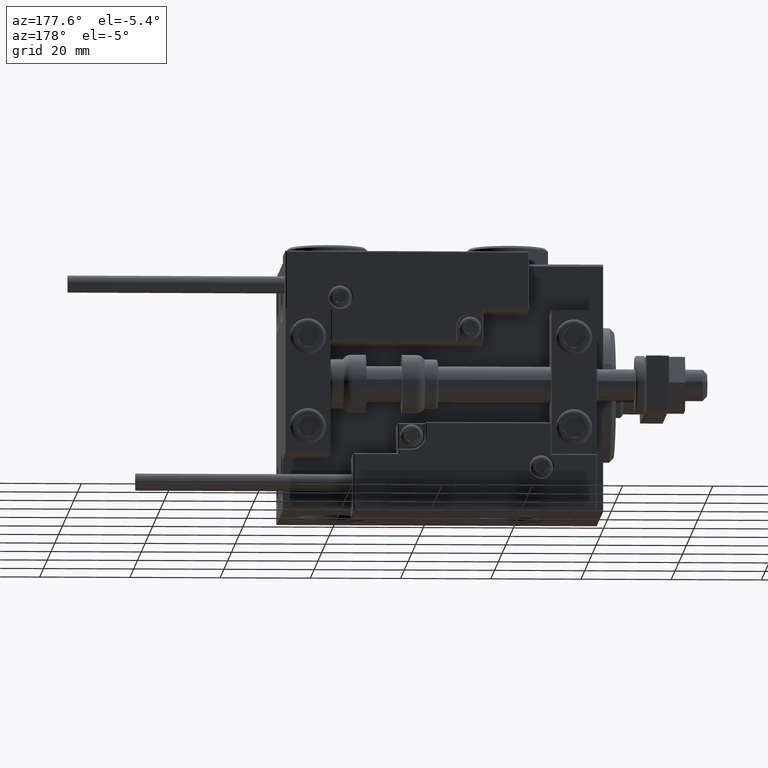
[diagram: clean part render]
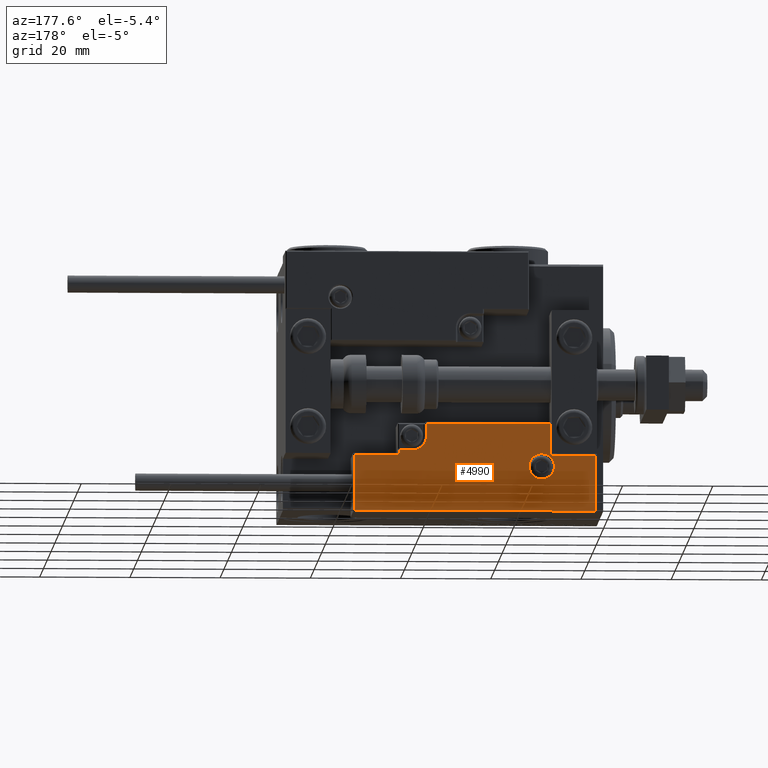
[diagram: same view with one face highlighted and labeled with its STEP entity id]
A machine part, auxiliary view. The second image highlights one B-rep face of the part: STEP entity #4990.
In plain terms, the highlighted planar face has unit normal (-0, 1, -0).
Its self-contained STEP definition (entity closure, byte-faithful):
#24 = LINE ( 'NONE', #39387, #17751 ) ;
#43 = VERTEX_POINT ( 'NONE', #46059 ) ;
#112 = CARTESIAN_POINT ( 'NONE',  ( 0.000000000000000000, 0.000000000000000000, 14.00000000000000000 ) ) ;
#916 = VECTOR ( 'NONE', #11790, 1000.000000000000000 ) ;
#1487 = EDGE_CURVE ( 'NONE', #8865, #2902, #44139, .T. ) ;
#2498 = CARTESIAN_POINT ( 'NONE',  ( -16.69999999999999218, 7.300000000000003375, 14.00000000000000000 ) ) ;
#2902 = VERTEX_POINT ( 'NONE', #35184 ) ;
#3754 = CARTESIAN_POINT ( 'NONE',  ( 10.69999999999999929, 3.000000000000003109, 14.00000000000000000 ) ) ;
#3976 = ORIENTED_EDGE ( 'NONE', *, *, #1487, .T. ) ;
#4990 = ADVANCED_FACE ( 'NONE', ( #31660, #44147 ), #47576, .T. ) ;
#5019 = ORIENTED_EDGE ( 'NONE', *, *, #34807, .T. ) ;
#5955 = VERTEX_POINT ( 'NONE', #2498 ) ;
#6828 = VERTEX_POINT ( 'NONE', #46099 ) ;
#7706 = LINE ( 'NONE', #15283, #19313 ) ;
#8865 = VERTEX_POINT ( 'NONE', #22667 ) ;
#10087 = ORIENTED_EDGE ( 'NONE', *, *, #10837, .T. ) ;
#10363 = EDGE_LOOP ( 'NONE', ( #3976, #16828 ) ) ;
#10467 = ORIENTED_EDGE ( 'NONE', *, *, #22416, .T. ) ;
#10821 = CARTESIAN_POINT ( 'NONE',  ( 13.99999999999999822, 6.300000000000001599, 14.00000000000000000 ) ) ;
#10837 = EDGE_CURVE ( 'NONE', #12705, #6828, #29470, .T. ) ;
#11027 = LINE ( 'NONE', #42815, #916 ) ;
#11790 = DIRECTION ( 'NONE',  ( -1.000000000000000000, 6.424901762877063495E-17, -0.000000000000000000 ) ) ;
#12258 = ORIENTED_EDGE ( 'NONE', *, *, #31239, .T. ) ;
#12592 = ORIENTED_EDGE ( 'NONE', *, *, #27986, .T. ) ;
#12705 = VERTEX_POINT ( 'NONE', #18082 ) ;
#13340 = AXIS2_PLACEMENT_3D ( 'NONE', #112, #31923, #47319 ) ;
#13341 = VERTEX_POINT ( 'NONE', #10821 ) ;
#14331 = ORIENTED_EDGE ( 'NONE', *, *, #27168, .T. ) ;
#14783 = ORIENTED_EDGE ( 'NONE', *, *, #22266, .T. ) ;
#15283 = CARTESIAN_POINT ( 'NONE',  ( 16.69999999999999929, 7.000000000000009770, 14.00000000000000000 ) ) ;
#15429 = CARTESIAN_POINT ( 'NONE',  ( 13.99999999999999822, 3.000000000000002665, 14.00000000000000000 ) ) ;
#16828 = ORIENTED_EDGE ( 'NONE', *, *, #48412, .T. ) ;
#16892 = VECTOR ( 'NONE', #34422, 1000.000000000000000 ) ;
#16982 = CARTESIAN_POINT ( 'NONE',  ( 27.00000000000006395, 7.300000000000007816, 14.00000000000000000 ) ) ;
#17046 = VECTOR ( 'NONE', #33677, 1000.000000000000000 ) ;
#17736 = CARTESIAN_POINT ( 'NONE',  ( 26.70000000000006324, 20.00000000000001776, 14.00000000000000000 ) ) ;
#17751 = VECTOR ( 'NONE', #27914, 1000.000000000000000 ) ;
#17803 = CARTESIAN_POINT ( 'NONE',  ( -26.69999999999994600, 7.000000000000005329, 14.00000000000000000 ) ) ;
#17910 = ORIENTED_EDGE ( 'NONE', *, *, #20043, .T. ) ;
#17956 = VERTEX_POINT ( 'NONE', #34830 ) ;
#18027 = LINE ( 'NONE', #18807, #16892 ) ;
#18082 = CARTESIAN_POINT ( 'NONE',  ( 16.69999999999999929, 7.300000000000009592, 14.00000000000000000 ) ) ;
#18496 = DIRECTION ( 'NONE',  ( 0.000000000000000000, 1.000000000000000000, -0.000000000000000000 ) ) ;
#18807 = CARTESIAN_POINT ( 'NONE',  ( -16.99999999999999289, 7.300000000000003375, 14.00000000000000000 ) ) ;
#19313 = VECTOR ( 'NONE', #31169, 1000.000000000000000 ) ;
#20043 = EDGE_CURVE ( 'NONE', #24370, #43, #43361, .T. ) ;
#20195 = LINE ( 'NONE', #28014, #46820 ) ;
#21565 = CARTESIAN_POINT ( 'NONE',  ( -26.69999999999993534, 19.70000000000002061, 14.00000000000000000 ) ) ;
#21890 = VECTOR ( 'NONE', #33368, 1000.000000000000000 ) ;
#21972 = DIRECTION ( 'NONE',  ( 0.000000000000000000, -0.000000000000000000, -1.000000000000000000 ) ) ;
#22255 = AXIS2_PLACEMENT_3D ( 'NONE', #15429, #31313, #47226 ) ;
#22266 = EDGE_CURVE ( 'NONE', #17956, #12705, #7706, .T. ) ;
#22416 = EDGE_CURVE ( 'NONE', #13341, #17956, #20195, .T. ) ;
#22667 = CARTESIAN_POINT ( 'NONE',  ( -11.99999999999994849, 9.800000000000004263, 14.00000000000000000 ) ) ;
#24127 = CIRCLE ( 'NONE', #35807, 2.800000000000000266 ) ;
#24210 = VECTOR ( 'NONE', #31898, 1000.000000000000000 ) ;
#24370 = VERTEX_POINT ( 'NONE', #50948 ) ;
#26280 = VECTOR ( 'NONE', #35021, 1000.000000000000000 ) ;
#26827 = CARTESIAN_POINT ( 'NONE',  ( -16.69999999999999218, 0.3000000000000032085, 14.00000000000000000 ) ) ;
#27053 = VERTEX_POINT ( 'NONE', #31428 ) ;
#27168 = EDGE_CURVE ( 'NONE', #28280, #5955, #18027, .T. ) ;
#27914 = DIRECTION ( 'NONE',  ( 0.000000000000000000, -1.000000000000000000, 0.000000000000000000 ) ) ;
#27986 = EDGE_CURVE ( 'NONE', #5955, #47887, #24, .T. ) ;
#28014 = CARTESIAN_POINT ( 'NONE',  ( 17.00000000000000000, 6.300000000000003375, 14.00000000000000000 ) ) ;
#28280 = VERTEX_POINT ( 'NONE', #42988 ) ;
#28555 = DIRECTION ( 'NONE',  ( 0.000000000000000000, -0.000000000000000000, -1.000000000000000000 ) ) ;
#29470 = LINE ( 'NONE', #16982, #21890 ) ;
#29744 = EDGE_LOOP ( 'NONE', ( #12592, #5019, #17910, #43532, #10467, #14783, #10087, #32507, #39917, #12258, #14331 ) ) ;
#30487 = LINE ( 'NONE', #17736, #51183 ) ;
#30867 = LINE ( 'NONE', #38688, #26280 ) ;
#31169 = DIRECTION ( 'NONE',  ( 9.912705577010318647E-16, 1.000000000000000000, 0.000000000000000000 ) ) ;
#31239 = EDGE_CURVE ( 'NONE', #31798, #28280, #33164, .T. ) ;
#31313 = DIRECTION ( 'NONE',  ( 0.000000000000000000, -0.000000000000000000, -1.000000000000000000 ) ) ;
#31428 = CARTESIAN_POINT ( 'NONE',  ( 26.70000000000006324, 19.70000000000001705, 14.00000000000000000 ) ) ;
#31660 = FACE_BOUND ( 'NONE', #10363, .T. ) ;
#31664 = EDGE_CURVE ( 'NONE', #6828, #27053, #30487, .T. ) ;
#31798 = VERTEX_POINT ( 'NONE', #21565 ) ;
#31898 = DIRECTION ( 'NONE',  ( -0.000000000000000000, 1.000000000000000000, -0.000000000000000000 ) ) ;
#31923 = DIRECTION ( 'NONE',  ( -0.000000000000000000, 0.000000000000000000, 1.000000000000000000 ) ) ;
#32460 = DIRECTION ( 'NONE',  ( 1.000000000000000000, 0.000000000000000000, 0.000000000000000000 ) ) ;
#32507 = ORIENTED_EDGE ( 'NONE', *, *, #31664, .T. ) ;
#33164 = LINE ( 'NONE', #17803, #17046 ) ;
#33368 = DIRECTION ( 'NONE',  ( 1.000000000000000000, -1.734723475976796001E-16, 0.000000000000000000 ) ) ;
#33677 = DIRECTION ( 'NONE',  ( -8.006416042969869188E-16, -1.000000000000000000, 0.000000000000000000 ) ) ;
#34422 = DIRECTION ( 'NONE',  ( 1.000000000000000000, -1.734723475976815230E-16, 0.000000000000000000 ) ) ;
#34807 = EDGE_CURVE ( 'NONE', #47887, #24370, #30867, .T. ) ;
#34830 = CARTESIAN_POINT ( 'NONE',  ( 16.69999999999999929, 6.300000000000003375, 14.00000000000000000 ) ) ;
#35021 = DIRECTION ( 'NONE',  ( 1.000000000000000000, -0.000000000000000000, 0.000000000000000000 ) ) ;
#35184 = CARTESIAN_POINT ( 'NONE',  ( -17.59999999999994813, 9.800000000000004263, 14.00000000000000000 ) ) ;
#35807 = AXIS2_PLACEMENT_3D ( 'NONE', #36119, #28555, #32460 ) ;
#36119 = CARTESIAN_POINT ( 'NONE',  ( -14.79999999999994920, 9.800000000000004263, 14.00000000000000000 ) ) ;
#36833 = CARTESIAN_POINT ( 'NONE',  ( -14.79999999999994920, 9.800000000000004263, 14.00000000000000000 ) ) ;
#38688 = CARTESIAN_POINT ( 'NONE',  ( 11.00000000000000000, 0.3000000000000032085, 14.00000000000000000 ) ) ;
#39387 = CARTESIAN_POINT ( 'NONE',  ( -16.69999999999999218, 3.252606517456513302E-15, 14.00000000000000000 ) ) ;
#39917 = ORIENTED_EDGE ( 'NONE', *, *, #49931, .T. ) ;
#40740 = DIRECTION ( 'NONE',  ( 1.000000000000000000, 0.000000000000000000, 0.000000000000000000 ) ) ;
#40756 = DIRECTION ( 'NONE',  ( 1.000000000000000000, 5.782411586589357639E-16, -0.000000000000000000 ) ) ;
#40788 = AXIS2_PLACEMENT_3D ( 'NONE', #36833, #21972, #40740 ) ;
#42061 = EDGE_CURVE ( 'NONE', #43, #13341, #44728, .T. ) ;
#42815 = CARTESIAN_POINT ( 'NONE',  ( -26.99999999999993605, 19.70000000000002061, 14.00000000000000000 ) ) ;
#42988 = CARTESIAN_POINT ( 'NONE',  ( -26.69999999999994600, 7.300000000000005151, 14.00000000000000000 ) ) ;
#43361 = LINE ( 'NONE', #3754, #24210 ) ;
#43532 = ORIENTED_EDGE ( 'NONE', *, *, #42061, .T. ) ;
#44139 = CIRCLE ( 'NONE', #40788, 2.800000000000000266 ) ;
#44147 = FACE_OUTER_BOUND ( 'NONE', #29744, .T. ) ;
#44728 = CIRCLE ( 'NONE', #22255, 3.299999999999997158 ) ;
#46059 = CARTESIAN_POINT ( 'NONE',  ( 10.69999999999999929, 3.000000000000003109, 14.00000000000000000 ) ) ;
#46099 = CARTESIAN_POINT ( 'NONE',  ( 26.70000000000006324, 7.300000000000007816, 14.00000000000000000 ) ) ;
#46820 = VECTOR ( 'NONE', #40756, 1000.000000000000000 ) ;
#47226 = DIRECTION ( 'NONE',  ( 1.000000000000000000, 0.000000000000000000, 0.000000000000000000 ) ) ;
#47319 = DIRECTION ( 'NONE',  ( 1.000000000000000000, 0.000000000000000000, 0.000000000000000000 ) ) ;
#47576 = PLANE ( 'NONE',  #13340 ) ;
#47887 = VERTEX_POINT ( 'NONE', #26827 ) ;
#48412 = EDGE_CURVE ( 'NONE', #2902, #8865, #24127, .T. ) ;
#49931 = EDGE_CURVE ( 'NONE', #27053, #31798, #11027, .T. ) ;
#50948 = CARTESIAN_POINT ( 'NONE',  ( 10.69999999999999929, 0.3000000000000032085, 14.00000000000000000 ) ) ;
#51183 = VECTOR ( 'NONE', #18496, 1000.000000000000000 ) ;